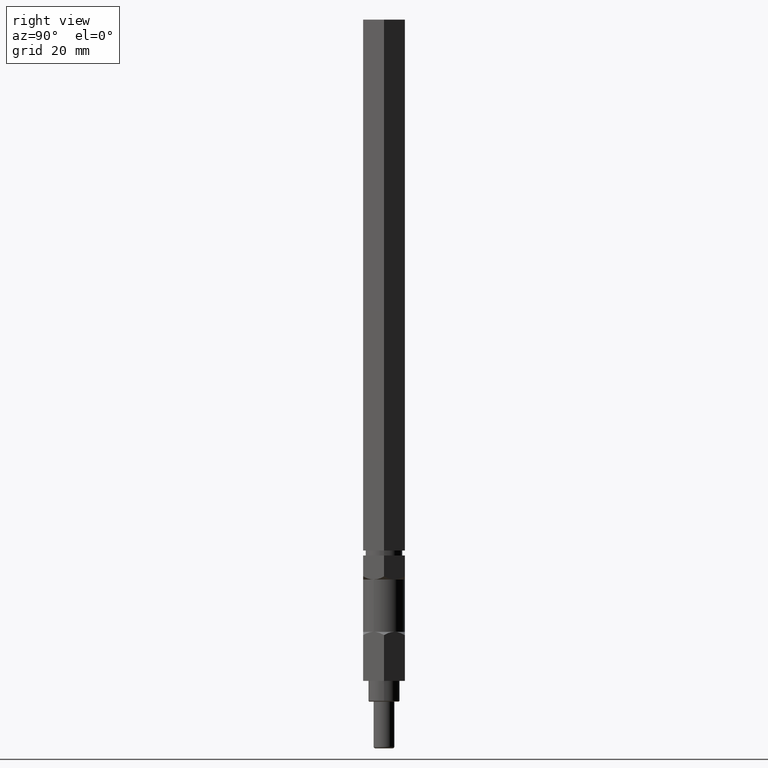
[diagram: clean part render]
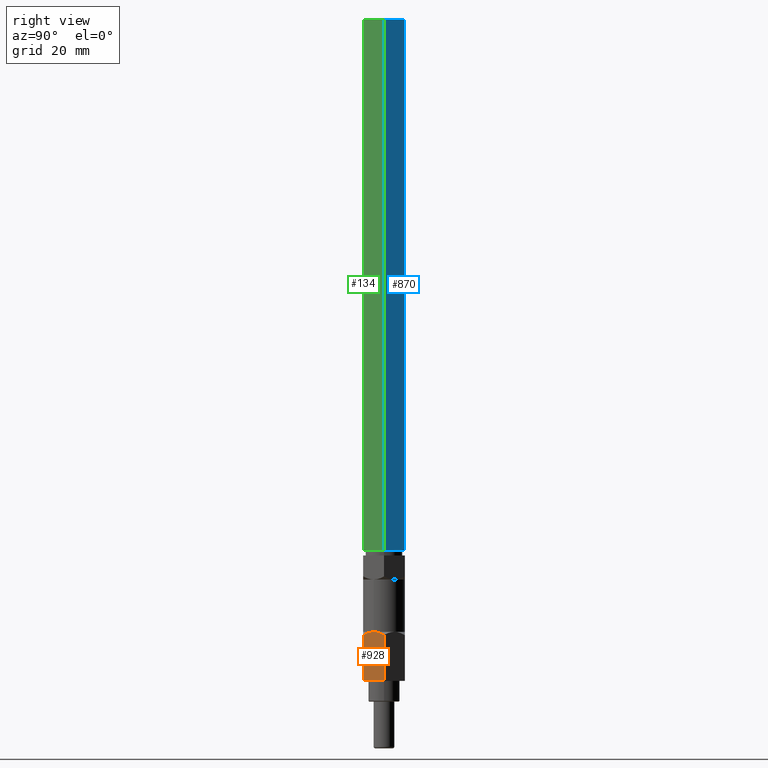
[diagram: same view with three faces highlighted in distinct colors, each labeled with its STEP entity id]
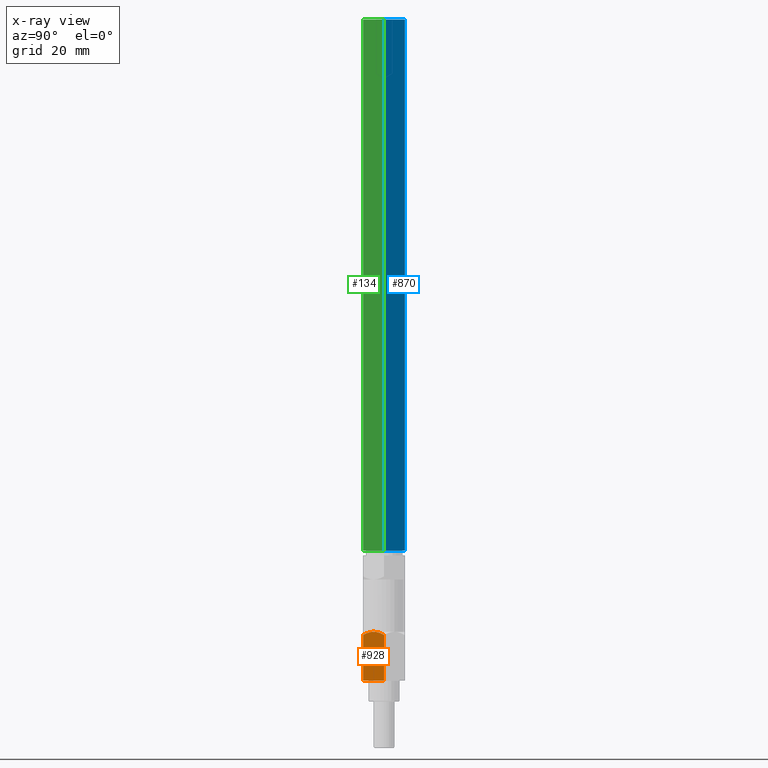
[diagram: x-ray of the same camera — body ghosted, the three highlighted faces saturated]
A machine part, right view with three faces highlighted in distinct colors.
The next image is the same camera in x-ray (body ghosted, the three faces saturated) — at least one of them is partly hidden behind the body in this view.
Their STEP definitions:

[orange] entity #928 — the highlighted planar face has unit normal (-0.866, 0.5, 0).
#7 = CARTESIAN_POINT ( 'NONE',  ( -39.99810469723942674, 25.17678744967367876, -78.48857250042460976 ) ) ;
#51 = CARTESIAN_POINT ( 'NONE',  ( -38.42418833370770415, 27.90289055817461872, -78.93951527207065055 ) ) ;
#99 = CARTESIAN_POINT ( 'NONE',  ( -41.50931968023328977, 22.55928631796896511, -79.47092004042455926 ) ) ;
#110 = CARTESIAN_POINT ( 'NONE',  ( -41.22032222430893711, 23.05984459488809790, -79.19445446182584192 ) ) ;
#147 = FACE_OUTER_BOUND ( 'NONE', #360, .T. ) ;
#167 = ORIENTED_EDGE ( 'NONE', *, *, #1720, .T. ) ;
#179 = VECTOR ( 'NONE', #553, 1000.000000000000114 ) ;
#242 = CARTESIAN_POINT ( 'NONE',  ( -40.31137274071699750, 24.63419128198282593, -78.58762250070174105 ) ) ;
#310 = EDGE_CURVE ( 'NONE', #1450, #1845, #338, .T. ) ;
#311 = CARTESIAN_POINT ( 'NONE',  ( -37.84314547087916480, 28.90928631796897008, -79.47092004042455926 ) ) ;
#338 = LINE ( 'NONE', #1247, #179 ) ;
#360 = EDGE_LOOP ( 'NONE', ( #362, #167, #1806, #1188, #609 ) ) ;
#362 = ORIENTED_EDGE ( 'NONE', *, *, #711, .F. ) ;
#422 = B_SPLINE_CURVE_WITH_KNOTS ( 'NONE', 3,
 ( #758, #7, #242, #1660, #554, #110, #1218, #99 ),
 .UNSPECIFIED., .F., .F.,
 ( 4, 2, 2, 4 ),
 ( 0.0000000000000000000, 0.001902731302156782621, 0.002854096953235174799, 0.003805462604313566977 ),
 .UNSPECIFIED. ) ;
#553 = DIRECTION ( 'NONE',  ( 0.4999999999999999445, 0.8660254037844385966, 0.0000000000000000000 ) ) ;
#554 = CARTESIAN_POINT ( 'NONE',  ( -40.92341054881964624, 23.57411070219593796, -78.95549486082009594 ) ) ;
#609 = ORIENTED_EDGE ( 'NONE', *, *, #310, .T. ) ;
#695 = B_SPLINE_CURVE_WITH_KNOTS ( 'NONE', 3,
 ( #1372, #1544, #51, #2042, #1008, #1680, #2011, #1125 ),
 .UNSPECIFIED., .F., .F.,
 ( 4, 2, 2, 4 ),
 ( 0.0000000000000000000, 0.001898955494015797801, 0.002848433241023696702, 0.003797910988031595603 ),
 .UNSPECIFIED. ) ;
#711 = EDGE_CURVE ( 'NONE', #2125, #1845, #1741, .T. ) ;
#758 = CARTESIAN_POINT ( 'NONE',  ( -39.67623257555622729, 25.73428631796896582, -78.48857250042458134 ) ) ;
#820 = DIRECTION ( 'NONE',  ( -0.8660254037844387076, 0.5000000000000000000, 0.0000000000000000000 ) ) ;
#824 = CARTESIAN_POINT ( 'NONE',  ( -37.84314547087916480, 28.90928631796896298, -93.44092004042454391 ) ) ;
#905 = CARTESIAN_POINT ( 'NONE',  ( -41.50931968023328977, 22.55928631796896511, -55.21392004042454715 ) ) ;
#928 = ADVANCED_FACE ( 'NONE', ( #147 ), #1953, .F. ) ;
#990 = DIRECTION ( 'NONE',  ( -0.0000000000000000000, -0.0000000000000000000, -1.000000000000000000 ) ) ;
#1008 = CARTESIAN_POINT ( 'NONE',  ( -39.03549377940510823, 26.84407846728321445, -78.60903965617787037 ) ) ;
#1112 = VECTOR ( 'NONE', #990, 1000.000000000000000 ) ;
#1125 = CARTESIAN_POINT ( 'NONE',  ( -39.67623257555622729, 25.73428631796896582, -78.48857250042458134 ) ) ;
#1184 = EDGE_CURVE ( 'NONE', #1958, #1450, #1867, .T. ) ;
#1188 = ORIENTED_EDGE ( 'NONE', *, *, #1184, .T. ) ;
#1218 = CARTESIAN_POINT ( 'NONE',  ( -41.36591254276152796, 22.80767476623807255, -79.32751380013054643 ) ) ;
#1247 = CARTESIAN_POINT ( 'NONE',  ( -41.50931968023328977, 22.55928631796896511, -93.44092004042454391 ) ) ;
#1356 = CARTESIAN_POINT ( 'NONE',  ( -41.50931968023328977, 22.55928631796896511, -79.47092004042455926 ) ) ;
#1371 = VECTOR ( 'NONE', #1539, 1000.000000000000000 ) ;
#1372 = CARTESIAN_POINT ( 'NONE',  ( -37.84314547087916480, 28.90928631796897008, -79.47092004042455926 ) ) ;
#1450 = VERTEX_POINT ( 'NONE', #1737 ) ;
#1501 = VERTEX_POINT ( 'NONE', #1657 ) ;
#1539 = DIRECTION ( 'NONE',  ( -0.0000000000000000000, -0.0000000000000000000, -1.000000000000000000 ) ) ;
#1544 = CARTESIAN_POINT ( 'NONE',  ( -38.13041889634372694, 28.41171567136737508, -79.18364749366824640 ) ) ;
#1560 = CARTESIAN_POINT ( 'NONE',  ( -37.84314547087916480, 28.90928631796896298, -55.21392004042454715 ) ) ;
#1573 = EDGE_CURVE ( 'NONE', #1501, #1958, #422, .T. ) ;
#1657 = CARTESIAN_POINT ( 'NONE',  ( -39.67623257555622729, 25.73428631796896582, -78.48857250042458134 ) ) ;
#1660 = CARTESIAN_POINT ( 'NONE',  ( -40.77144897092215103, 23.83731587591272216, -78.84931234472132644 ) ) ;
#1680 = CARTESIAN_POINT ( 'NONE',  ( -39.35171842973722534, 26.29636130630230539, -78.51399390747333484 ) ) ;
#1706 = CARTESIAN_POINT ( 'NONE',  ( -41.50931968023328977, 22.55928631796896511, -55.21392004042454715 ) ) ;
#1720 = EDGE_CURVE ( 'NONE', #2125, #1501, #695, .T. ) ;
#1737 = CARTESIAN_POINT ( 'NONE',  ( -41.50931968023328977, 22.55928631796896511, -93.44092004042454391 ) ) ;
#1741 = LINE ( 'NONE', #1560, #1371 ) ;
#1806 = ORIENTED_EDGE ( 'NONE', *, *, #1573, .T. ) ;
#1845 = VERTEX_POINT ( 'NONE', #824 ) ;
#1867 = LINE ( 'NONE', #905, #1112 ) ;
#1922 = DIRECTION ( 'NONE',  ( -0.4999999999999999445, -0.8660254037844385966, 0.0000000000000000000 ) ) ;
#1953 = PLANE ( 'NONE',  #2102 ) ;
#1958 = VERTEX_POINT ( 'NONE', #1356 ) ;
#2011 = CARTESIAN_POINT ( 'NONE',  ( -39.51406229327328390, 26.01517348636082261, -78.48857250042456712 ) ) ;
#2042 = CARTESIAN_POINT ( 'NONE',  ( -38.88066832496701863, 27.11224402067493600, -78.67838562998093721 ) ) ;
#2102 = AXIS2_PLACEMENT_3D ( 'NONE', #1706, #820, #1922 ) ;
#2125 = VERTEX_POINT ( 'NONE', #311 ) ;

[blue] entity #870 — the highlighted planar face has unit normal (-0.866, -0.5, 0).
#8 = EDGE_LOOP ( 'NONE', ( #1872, #1162, #452, #450 ) ) ;
#14 = LINE ( 'NONE', #778, #60 ) ;
#60 = VECTOR ( 'NONE', #1389, 1000.000000000000000 ) ;
#119 = VECTOR ( 'NONE', #1627, 1000.000000000000000 ) ;
#128 = CARTESIAN_POINT ( 'NONE',  ( -37.84314547087917191, 28.90928631796896653, -53.68992004042454624 ) ) ;
#226 = LINE ( 'NONE', #1894, #467 ) ;
#230 = VERTEX_POINT ( 'NONE', #1707 ) ;
#450 = ORIENTED_EDGE ( 'NONE', *, *, #1114, .T. ) ;
#452 = ORIENTED_EDGE ( 'NONE', *, *, #1230, .F. ) ;
#467 = VECTOR ( 'NONE', #1024, 1000.000000000000000 ) ;
#481 = DIRECTION ( 'NONE',  ( -0.0000000000000000000, -0.0000000000000000000, -1.000000000000000000 ) ) ;
#547 = AXIS2_PLACEMENT_3D ( 'NONE', #731, #1023, #1465 ) ;
#562 = VERTEX_POINT ( 'NONE', #1760 ) ;
#731 = CARTESIAN_POINT ( 'NONE',  ( -37.84314547087917191, 28.90928631796896653, 108.1868199595754447 ) ) ;
#778 = CARTESIAN_POINT ( 'NONE',  ( -37.84314547087917191, 28.90928631796896653, 108.1868199595754447 ) ) ;
#830 = EDGE_CURVE ( 'NONE', #562, #934, #1236, .T. ) ;
#870 = ADVANCED_FACE ( 'NONE', ( #1323 ), #1429, .F. ) ;
#934 = VERTEX_POINT ( 'NONE', #1005 ) ;
#1005 = CARTESIAN_POINT ( 'NONE',  ( -41.50931968023328977, 35.25928631796896440, -53.68992004042454624 ) ) ;
#1023 = DIRECTION ( 'NONE',  ( -0.8660254037844385966, -0.5000000000000001110, 0.0000000000000000000 ) ) ;
#1024 = DIRECTION ( 'NONE',  ( -0.0000000000000000000, -0.0000000000000000000, -1.000000000000000000 ) ) ;
#1114 = EDGE_CURVE ( 'NONE', #1827, #562, #226, .T. ) ;
#1162 = ORIENTED_EDGE ( 'NONE', *, *, #1281, .F. ) ;
#1230 = EDGE_CURVE ( 'NONE', #1827, #230, #14, .T. ) ;
#1236 = LINE ( 'NONE', #128, #119 ) ;
#1281 = EDGE_CURVE ( 'NONE', #230, #934, #1480, .T. ) ;
#1323 = FACE_OUTER_BOUND ( 'NONE', #8, .T. ) ;
#1367 = CARTESIAN_POINT ( 'NONE',  ( -41.50931968023328977, 35.25928631796896440, 108.1868199595754447 ) ) ;
#1389 = DIRECTION ( 'NONE',  ( -0.5000000000000001110, 0.8660254037844385966, 0.0000000000000000000 ) ) ;
#1429 = PLANE ( 'NONE',  #547 ) ;
#1465 = DIRECTION ( 'NONE',  ( 0.5000000000000001110, -0.8660254037844385966, 0.0000000000000000000 ) ) ;
#1480 = LINE ( 'NONE', #1367, #1932 ) ;
#1482 = CARTESIAN_POINT ( 'NONE',  ( -37.84314547087917191, 28.90928631796896653, 108.1868199595754447 ) ) ;
#1627 = DIRECTION ( 'NONE',  ( -0.5000000000000001110, 0.8660254037844385966, 0.0000000000000000000 ) ) ;
#1707 = CARTESIAN_POINT ( 'NONE',  ( -41.50931968023328977, 35.25928631796896440, 108.1868199595754447 ) ) ;
#1760 = CARTESIAN_POINT ( 'NONE',  ( -37.84314547087917191, 28.90928631796896653, -53.68992004042454624 ) ) ;
#1827 = VERTEX_POINT ( 'NONE', #1482 ) ;
#1872 = ORIENTED_EDGE ( 'NONE', *, *, #830, .T. ) ;
#1894 = CARTESIAN_POINT ( 'NONE',  ( -37.84314547087917191, 28.90928631796896653, 108.1868199595754447 ) ) ;
#1932 = VECTOR ( 'NONE', #481, 1000.000000000000000 ) ;

[green] entity #134 — the highlighted planar face has unit normal (-0.866, 0.5, 0).
#56 = EDGE_CURVE ( 'NONE', #237, #562, #2004, .T. ) ;
#81 = DIRECTION ( 'NONE',  ( 0.4999999999999992228, 0.8660254037844390407, 0.0000000000000000000 ) ) ;
#134 = ADVANCED_FACE ( 'NONE', ( #1613 ), #1998, .F. ) ;
#225 = EDGE_CURVE ( 'NONE', #924, #237, #2031, .T. ) ;
#226 = LINE ( 'NONE', #1894, #467 ) ;
#232 = CARTESIAN_POINT ( 'NONE',  ( -41.50931968023328977, 22.55928631796896155, 108.1868199595754447 ) ) ;
#237 = VERTEX_POINT ( 'NONE', #2019 ) ;
#256 = LINE ( 'NONE', #759, #884 ) ;
#467 = VECTOR ( 'NONE', #1024, 1000.000000000000000 ) ;
#562 = VERTEX_POINT ( 'NONE', #1760 ) ;
#759 = CARTESIAN_POINT ( 'NONE',  ( -41.50931968023328977, 22.55928631796896155, 108.1868199595754447 ) ) ;
#768 = AXIS2_PLACEMENT_3D ( 'NONE', #232, #1853, #1496 ) ;
#786 = DIRECTION ( 'NONE',  ( -0.0000000000000000000, -0.0000000000000000000, -1.000000000000000000 ) ) ;
#884 = VECTOR ( 'NONE', #81, 1000.000000000000227 ) ;
#900 = CARTESIAN_POINT ( 'NONE',  ( -41.50931968023328977, 22.55928631796896155, 108.1868199595754447 ) ) ;
#924 = VERTEX_POINT ( 'NONE', #900 ) ;
#989 = ORIENTED_EDGE ( 'NONE', *, *, #1114, .F. ) ;
#1024 = DIRECTION ( 'NONE',  ( -0.0000000000000000000, -0.0000000000000000000, -1.000000000000000000 ) ) ;
#1025 = EDGE_CURVE ( 'NONE', #924, #1827, #256, .T. ) ;
#1089 = VECTOR ( 'NONE', #2074, 1000.000000000000227 ) ;
#1114 = EDGE_CURVE ( 'NONE', #1827, #562, #226, .T. ) ;
#1192 = ORIENTED_EDGE ( 'NONE', *, *, #1025, .F. ) ;
#1482 = CARTESIAN_POINT ( 'NONE',  ( -37.84314547087917191, 28.90928631796896653, 108.1868199595754447 ) ) ;
#1496 = DIRECTION ( 'NONE',  ( -0.4999999999999992228, -0.8660254037844390407, 0.0000000000000000000 ) ) ;
#1509 = VECTOR ( 'NONE', #786, 1000.000000000000000 ) ;
#1613 = FACE_OUTER_BOUND ( 'NONE', #1963, .T. ) ;
#1760 = CARTESIAN_POINT ( 'NONE',  ( -37.84314547087917191, 28.90928631796896653, -53.68992004042454624 ) ) ;
#1764 = CARTESIAN_POINT ( 'NONE',  ( -41.50931968023328977, 22.55928631796896155, 108.1868199595754447 ) ) ;
#1827 = VERTEX_POINT ( 'NONE', #1482 ) ;
#1853 = DIRECTION ( 'NONE',  ( -0.8660254037844391517, 0.4999999999999992784, 0.0000000000000000000 ) ) ;
#1894 = CARTESIAN_POINT ( 'NONE',  ( -37.84314547087917191, 28.90928631796896653, 108.1868199595754447 ) ) ;
#1929 = ORIENTED_EDGE ( 'NONE', *, *, #225, .T. ) ;
#1963 = EDGE_LOOP ( 'NONE', ( #2026, #989, #1192, #1929 ) ) ;
#1998 = PLANE ( 'NONE',  #768 ) ;
#2004 = LINE ( 'NONE', #2013, #1089 ) ;
#2013 = CARTESIAN_POINT ( 'NONE',  ( -41.50931968023328977, 22.55928631796896155, -53.68992004042454624 ) ) ;
#2019 = CARTESIAN_POINT ( 'NONE',  ( -41.50931968023328977, 22.55928631796896155, -53.68992004042454624 ) ) ;
#2026 = ORIENTED_EDGE ( 'NONE', *, *, #56, .T. ) ;
#2031 = LINE ( 'NONE', #1764, #1509 ) ;
#2074 = DIRECTION ( 'NONE',  ( 0.4999999999999992228, 0.8660254037844390407, 0.0000000000000000000 ) ) ;